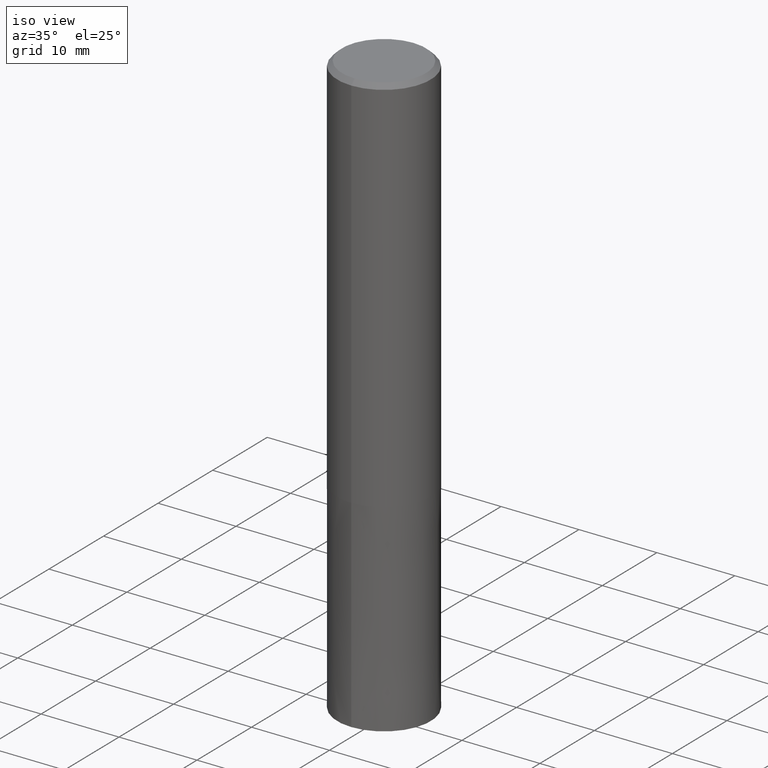
[diagram: clean part render]
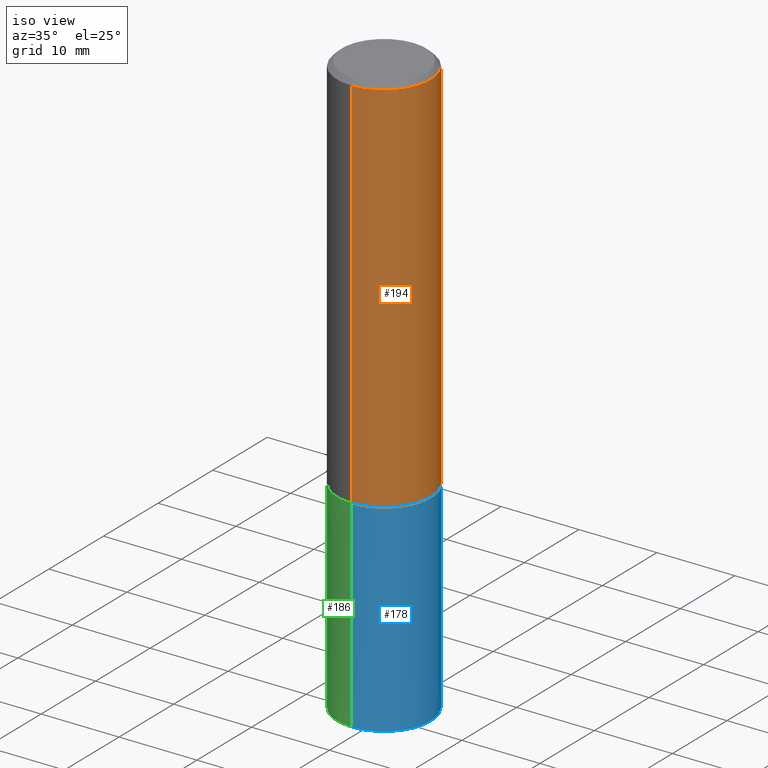
[diagram: same view with three faces highlighted in distinct colors, each labeled with its STEP entity id]
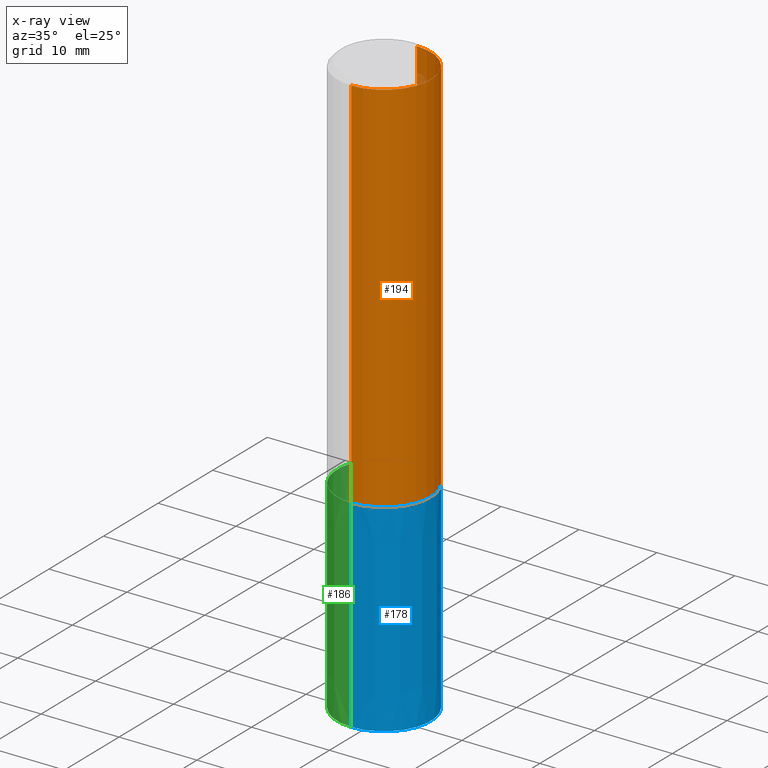
[diagram: x-ray of the same camera — body ghosted, the three highlighted faces saturated]
A machine part, iso view with three faces highlighted in distinct colors.
The next image is the same camera in x-ray (body ghosted, the three faces saturated) — at least one of them is partly hidden behind the body in this view.
Their STEP definitions:

[orange] entity #194 — the highlighted cylindrical surface (partial cylindrical patch) has radius 6 mm, axis along (-0, -0, 1).
#96=VERTEX_POINT('',#241);
#118=EDGE_CURVE('',#170,#138,#264,.T.);
#128=EDGE_CURVE('',#170,#96,#278,.T.);
#138=VERTEX_POINT('',#288);
#140=VERTEX_POINT('',#290);
#152=EDGE_CURVE('',#96,#140,#304,.T.);
#156=EDGE_CURVE('',#140,#138,#308,.T.);
#170=VERTEX_POINT('',#325);
#194=ADVANCED_FACE('',(#352),#353,.T.);
#241=CARTESIAN_POINT('',(0.0,6.0,-49.0));
#264=CIRCLE('',#432,6.0);
#278=LINE('',#447,#448);
#288=CARTESIAN_POINT('',(7.34763812293426E-016,-6.0,-0.600000000000001));
#290=CARTESIAN_POINT('',(7.34763812293426E-016,-6.0,-49.0));
#304=CIRCLE('',#482,6.0);
#308=LINE('',#487,#488);
#325=CARTESIAN_POINT('',(0.0,6.0,-0.600000000000001));
#352=FACE_OUTER_BOUND('',#535,.T.);
#353=CYLINDRICAL_SURFACE('',#536,6.0);
#432=AXIS2_PLACEMENT_3D('',#605,#606,#607);
#447=CARTESIAN_POINT('',(-7.34763812293426E-016,6.0,-24.8));
#448=VECTOR('',#630,1.0);
#482=AXIS2_PLACEMENT_3D('',#658,#659,#660);
#487=CARTESIAN_POINT('',(7.34763812293426E-016,-6.0,-24.8));
#488=VECTOR('',#661,1.0);
#535=EDGE_LOOP('',(#711,#712,#713,#714));
#536=AXIS2_PLACEMENT_3D('',#715,#716,#717);
#605=CARTESIAN_POINT('',(0.0,0.0,-0.600000000000001));
#606=DIRECTION('',(0.0,0.0,-1.0));
#607=DIRECTION('',(0.0,1.0,0.0));
#630=DIRECTION('',(0.0,0.0,-1.0));
#658=CARTESIAN_POINT('',(0.0,0.0,-49.0));
#659=DIRECTION('',(0.0,0.0,-1.0));
#660=DIRECTION('',(0.0,1.0,0.0));
#661=DIRECTION('',(-0.0,-0.0,1.0));
#711=ORIENTED_EDGE('',*,*,#128,.F.);
#712=ORIENTED_EDGE('',*,*,#118,.T.);
#713=ORIENTED_EDGE('',*,*,#156,.F.);
#714=ORIENTED_EDGE('',*,*,#152,.F.);
#715=CARTESIAN_POINT('',(0.0,0.0,-24.8));
#716=DIRECTION('',(-0.0,-0.0,1.0));
#717=DIRECTION('',(0.0,1.0,0.0));

[blue] entity #178 — the highlighted conical surface has half-angle 0 deg.
#112=EDGE_CURVE('',#150,#192,#258,.T.);
#130=EDGE_CURVE('',#174,#192,#280,.T.);
#134=EDGE_CURVE('',#154,#150,#284,.T.);
#150=VERTEX_POINT('',#302);
#154=VERTEX_POINT('',#306);
#174=VERTEX_POINT('',#329);
#178=ADVANCED_FACE('',(#333),#334,.T.);
#188=EDGE_CURVE('',#174,#154,#346,.T.);
#192=VERTEX_POINT('',#350);
#258=LINE('',#421,#422);
#280=CIRCLE('',#451,5.9999);
#284=CIRCLE('',#458,6.0);
#302=CARTESIAN_POINT('',(7.34763812293426E-016,-6.0,-75.0));
#306=CARTESIAN_POINT('',(0.0,6.0,-75.0));
#329=CARTESIAN_POINT('',(0.0,5.9999,-49.0));
#333=FACE_OUTER_BOUND('',#513,.T.);
#334=CONICAL_SURFACE('',#514,5.99995,3.84615384612592E-006);
#346=LINE('',#528,#529);
#350=CARTESIAN_POINT('',(7.34751566229888E-016,-5.9999,-49.0));
#421=CARTESIAN_POINT('',(7.34757689261657E-016,-5.99995,-62.0));
#422=VECTOR('',#600,1.0);
#451=AXIS2_PLACEMENT_3D('',#631,#632,#633);
#458=AXIS2_PLACEMENT_3D('',#635,#636,#637);
#513=EDGE_LOOP('',(#683,#684,#685,#686));
#514=AXIS2_PLACEMENT_3D('',#687,#688,#689);
#528=CARTESIAN_POINT('',(-7.34757689261657E-016,5.99995,-62.0));
#529=VECTOR('',#709,1.0);
#600=DIRECTION('',(-4.71002443773256E-022,3.84615384611643E-006,0.999999999992604));
#631=CARTESIAN_POINT('',(0.0,0.0,-49.0));
#632=DIRECTION('',(0.0,0.0,-1.0));
#633=DIRECTION('',(0.0,1.0,0.0));
#635=CARTESIAN_POINT('',(0.0,0.0,-75.0));
#636=DIRECTION('',(0.0,0.0,-1.0));
#637=DIRECTION('',(0.0,1.0,0.0));
#683=ORIENTED_EDGE('',*,*,#188,.F.);
#684=ORIENTED_EDGE('',*,*,#130,.T.);
#685=ORIENTED_EDGE('',*,*,#112,.F.);
#686=ORIENTED_EDGE('',*,*,#134,.F.);
#687=CARTESIAN_POINT('',(0.0,0.0,-62.0));
#688=DIRECTION('',(0.0,-0.0,-1.0));
#689=DIRECTION('',(0.0,1.0,0.0));
#709=DIRECTION('',(-4.71002443773256E-022,3.84615384611643E-006,-0.999999999992604));

[green] entity #186 — the highlighted conical surface has half-angle 0 deg.
#112=EDGE_CURVE('',#150,#192,#258,.T.);
#150=VERTEX_POINT('',#302);
#154=VERTEX_POINT('',#306);
#174=VERTEX_POINT('',#329);
#186=ADVANCED_FACE('',(#343),#344,.T.);
#188=EDGE_CURVE('',#174,#154,#346,.T.);
#192=VERTEX_POINT('',#350);
#196=EDGE_CURVE('',#150,#154,#355,.T.);
#206=EDGE_CURVE('',#192,#174,#368,.T.);
#258=LINE('',#421,#422);
#302=CARTESIAN_POINT('',(7.34763812293426E-016,-6.0,-75.0));
#306=CARTESIAN_POINT('',(0.0,6.0,-75.0));
#329=CARTESIAN_POINT('',(0.0,5.9999,-49.0));
#343=FACE_OUTER_BOUND('',#524,.T.);
#344=CONICAL_SURFACE('',#525,5.99995,3.84615384612592E-006);
#346=LINE('',#528,#529);
#350=CARTESIAN_POINT('',(7.34751566229888E-016,-5.9999,-49.0));
#355=CIRCLE('',#539,6.0);
#368=CIRCLE('',#557,5.9999);
#421=CARTESIAN_POINT('',(7.34757689261657E-016,-5.99995,-62.0));
#422=VECTOR('',#600,1.0);
#524=EDGE_LOOP('',(#702,#703,#704,#705));
#525=AXIS2_PLACEMENT_3D('',#706,#707,#708);
#528=CARTESIAN_POINT('',(-7.34757689261657E-016,5.99995,-62.0));
#529=VECTOR('',#709,1.0);
#539=AXIS2_PLACEMENT_3D('',#718,#719,#720);
#557=AXIS2_PLACEMENT_3D('',#737,#738,#739);
#600=DIRECTION('',(-4.71002443773256E-022,3.84615384611643E-006,0.999999999992604));
#702=ORIENTED_EDGE('',*,*,#188,.T.);
#703=ORIENTED_EDGE('',*,*,#196,.F.);
#704=ORIENTED_EDGE('',*,*,#112,.T.);
#705=ORIENTED_EDGE('',*,*,#206,.T.);
#706=CARTESIAN_POINT('',(0.0,0.0,-62.0));
#707=DIRECTION('',(0.0,-0.0,-1.0));
#708=DIRECTION('',(0.0,1.0,0.0));
#709=DIRECTION('',(-4.71002443773256E-022,3.84615384611643E-006,-0.999999999992604));
#718=CARTESIAN_POINT('',(0.0,0.0,-75.0));
#719=DIRECTION('',(0.0,0.0,-1.0));
#720=DIRECTION('',(0.0,1.0,0.0));
#737=CARTESIAN_POINT('',(0.0,0.0,-49.0));
#738=DIRECTION('',(0.0,0.0,-1.0));
#739=DIRECTION('',(0.0,1.0,0.0));